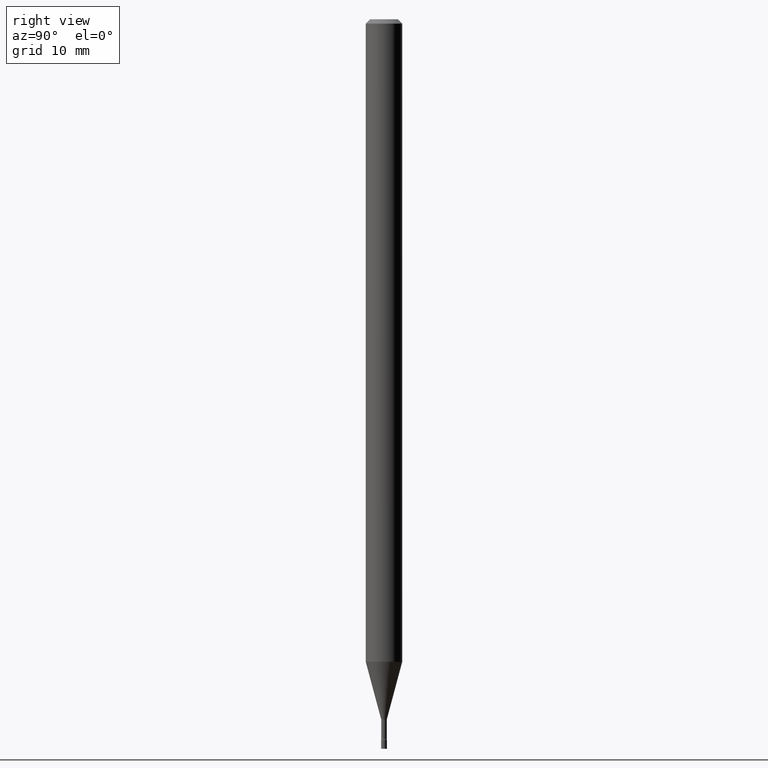
[diagram: clean part render]
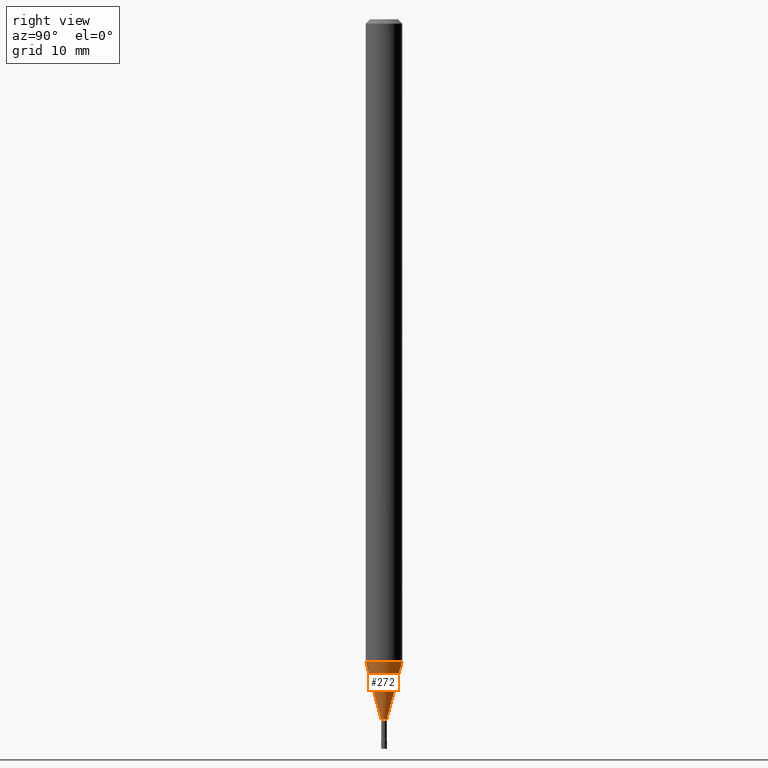
[diagram: same view with one face highlighted and labeled with its STEP entity id]
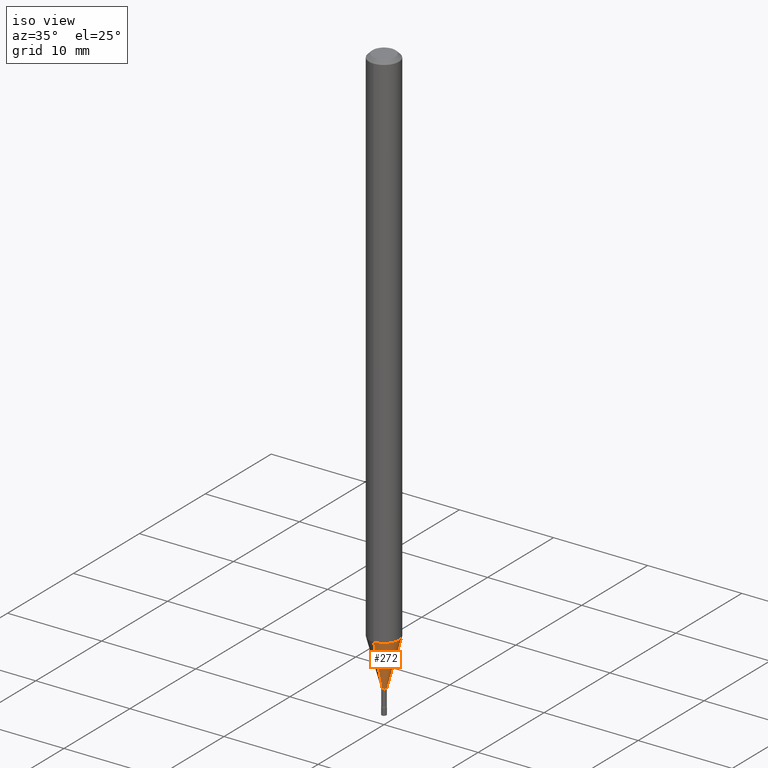
[diagram: same view with one face highlighted and labeled with its STEP entity id]
A machine part, right view. The second image highlights one B-rep face of the part: STEP entity #272.
A second angle (iso view) of the same face is appended — the face is thin or edge-on in the first view.
In plain terms, the highlighted conical surface has half-angle 15 deg.
Its self-contained STEP definition (entity closure, byte-faithful):
#2 = EDGE_LOOP ( 'NONE', ( #215, #450, #129, #425 ) ) ;
#7 = CARTESIAN_POINT ( 'NONE',  ( 5.864622845954269550E-29, -8.372662597651102146E-15, -2.398092501787273179 ) ) ;
#26 = CARTESIAN_POINT ( 'NONE',  ( -6.920892941963881843E-17, -0.009911112605672353984, -2.398092501787273179 ) ) ;
#34 = VECTOR ( 'NONE', #337, 39.37007874015748143 ) ;
#41 = FACE_OUTER_BOUND ( 'NONE', #2, .T. ) ;
#66 = LINE ( 'NONE', #26, #198 ) ;
#67 = CARTESIAN_POINT ( 'NONE',  ( -6.920892941963881843E-17, -0.009911112605672353984, -2.398092501787273179 ) ) ;
#80 = DIRECTION ( 'NONE',  ( -2.445536542724447659E-29, 3.491384336263527933E-15, 1.000000000000000000 ) ) ;
#88 = CIRCLE ( 'NONE', #321, 0.06250000000000000000 ) ;
#104 = VERTEX_POINT ( 'NONE', #397 ) ;
#111 = CARTESIAN_POINT ( 'NONE',  ( 7.042269065260763166E-17, 0.009911112605655608698, -2.398092501787273179 ) ) ;
#112 = EDGE_CURVE ( 'NONE', #280, #300, #66, .T. ) ;
#122 = CIRCLE ( 'NONE', #461, 0.009911112605663982209 ) ;
#129 = ORIENTED_EDGE ( 'NONE', *, *, #250, .F. ) ;
#160 = CARTESIAN_POINT ( 'NONE',  ( 2.572559502513620993E-16, 0.009911112605655608698, -2.398092501787273179 ) ) ;
#166 = DIRECTION ( 'NONE',  ( -2.445536542724447659E-29, 3.491384336263527933E-15, 1.000000000000000000 ) ) ;
#198 = VECTOR ( 'NONE', #393, 39.37007874015748143 ) ;
#199 = CARTESIAN_POINT ( 'NONE',  ( 5.384651084527414433E-29, -7.687428146879962724E-15, -2.201828102118093433 ) ) ;
#204 = VERTEX_POINT ( 'NONE', #160 ) ;
#215 = ORIENTED_EDGE ( 'NONE', *, *, #271, .T. ) ;
#250 = EDGE_CURVE ( 'NONE', #300, #104, #88, .T. ) ;
#271 = EDGE_CURVE ( 'NONE', #280, #204, #122, .T. ) ;
#272 = ADVANCED_FACE ( 'NONE', ( #41 ), #431, .T. ) ;
#280 = VERTEX_POINT ( 'NONE', #67 ) ;
#292 = EDGE_CURVE ( 'NONE', #204, #104, #323, .T. ) ;
#300 = VERTEX_POINT ( 'NONE', #493 ) ;
#321 = AXIS2_PLACEMENT_3D ( 'NONE', #199, #485, #451 ) ;
#323 = LINE ( 'NONE', #111, #34 ) ;
#337 = DIRECTION ( 'NONE',  ( 1.839019923739601104E-15, 0.2588190451025250693, 0.9659258262890670910 ) ) ;
#365 = DIRECTION ( 'NONE',  ( -6.982962677686264344E-15, -1.000000000000000000, 0.000000000000000000 ) ) ;
#372 = CARTESIAN_POINT ( 'NONE',  ( 5.864622845954269550E-29, -8.372662597651102146E-15, -2.398092501787273179 ) ) ;
#393 = DIRECTION ( 'NONE',  ( -1.807323732225330928E-15, -0.2588190451025182970, 0.9659258262890689783 ) ) ;
#397 = CARTESIAN_POINT ( 'NONE',  ( 4.440892098501162587E-16, 0.06249999999999230477, -2.201828102118093877 ) ) ;
#425 = ORIENTED_EDGE ( 'NONE', *, *, #112, .F. ) ;
#431 = CONICAL_SURFACE ( 'NONE', #495, 0.009911112605663982209, 0.2617993877991502960 ) ;
#450 = ORIENTED_EDGE ( 'NONE', *, *, #292, .T. ) ;
#451 = DIRECTION ( 'NONE',  ( -6.982962677686265922E-15, -1.000000000000000000, 4.370956789862821150E-15 ) ) ;
#461 = AXIS2_PLACEMENT_3D ( 'NONE', #372, #80, #365 ) ;
#485 = DIRECTION ( 'NONE',  ( -2.445536542724447659E-29, 3.491384336263527933E-15, 1.000000000000000000 ) ) ;
#491 = DIRECTION ( 'NONE',  ( -6.982962677686264344E-15, -1.000000000000000000, 0.000000000000000000 ) ) ;
#493 = CARTESIAN_POINT ( 'NONE',  ( -4.364351673553378297E-16, -0.06250000000000768829, -2.201828102118092989 ) ) ;
#495 = AXIS2_PLACEMENT_3D ( 'NONE', #7, #166, #491 ) ;